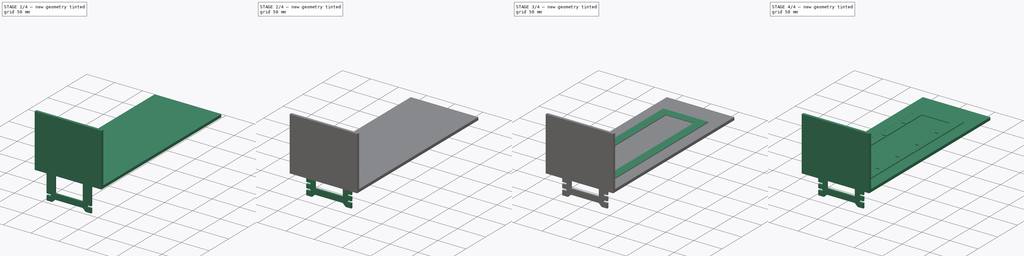
[diagram: build sequence overview — one tinted view per stage of 4, left to right]
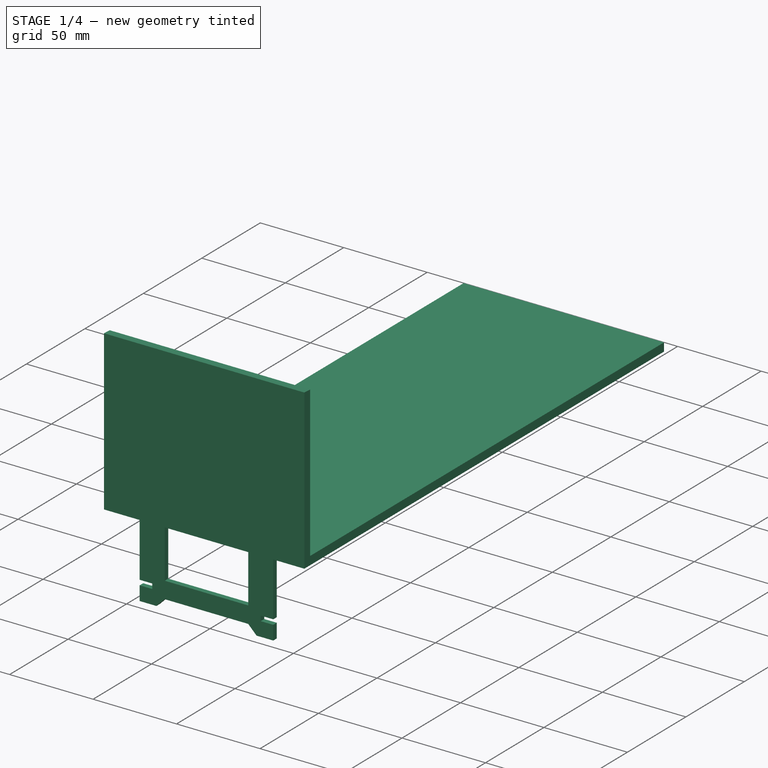
[diagram: stage 1 of 4 — iso view after this stage's code; geometry added in this stage tinted green]
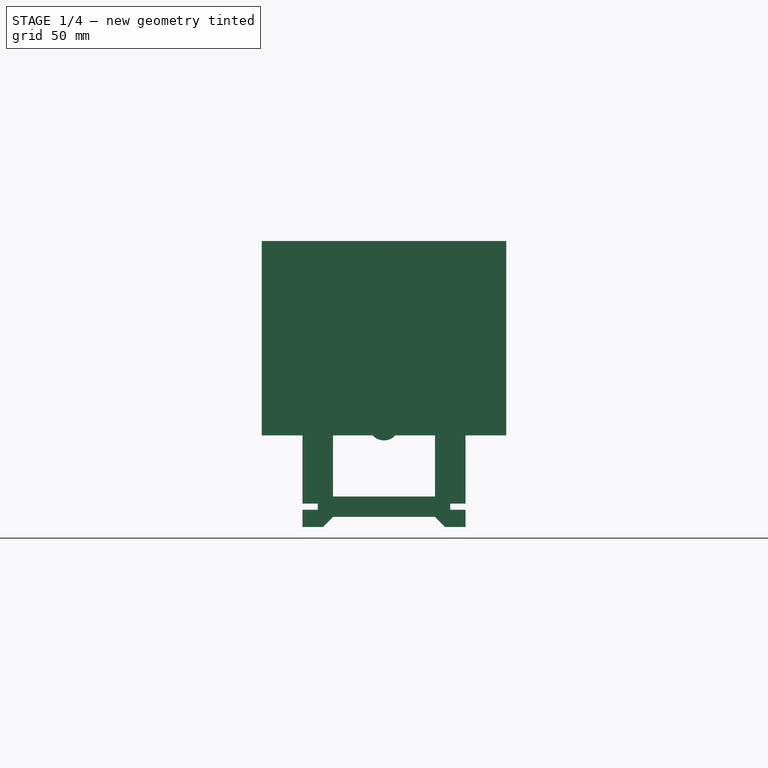
[diagram: stage 1 of 4 — front view after this stage's code; geometry added in this stage tinted green]
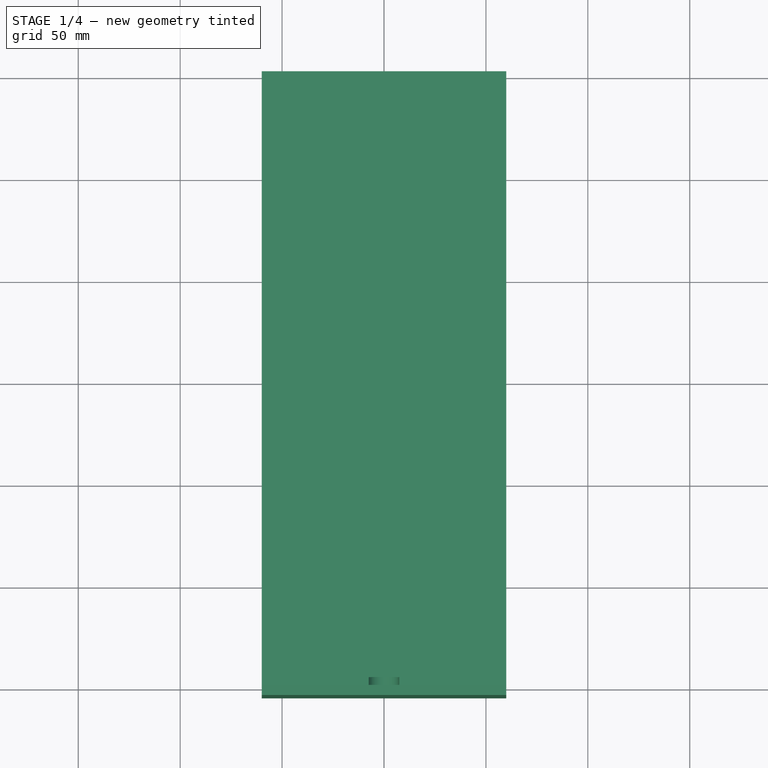
[diagram: stage 1 of 4 — top view after this stage's code; geometry added in this stage tinted green]
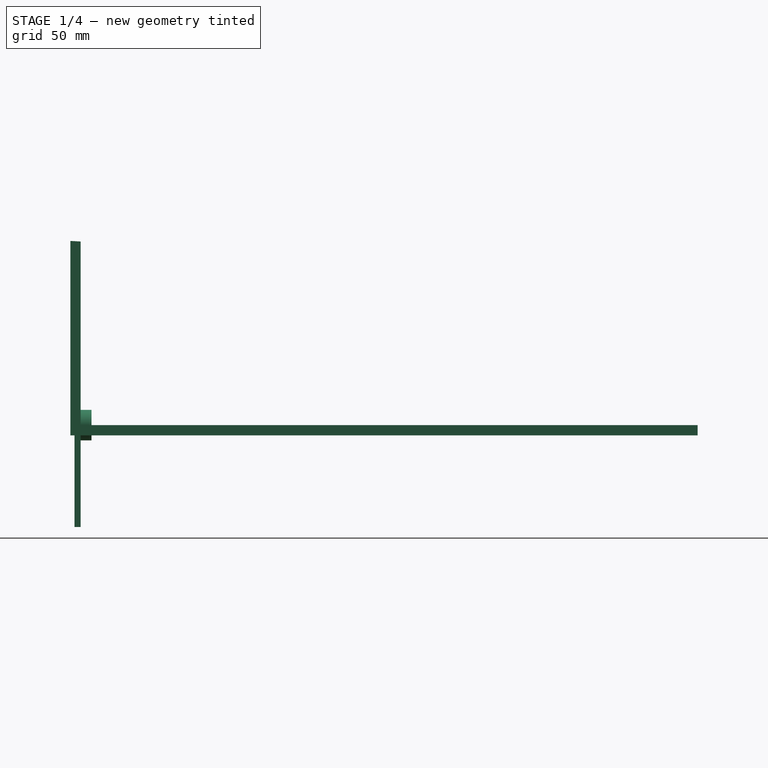
[diagram: stage 1 of 4 — right view after this stage's code; geometry added in this stage tinted green]
FCSTD DOCUMENT  (FreeCAD 0.19R24012 (Git))
Label: target_scale
License: All rights reserved
LicenseURL: http://en.wikipedia.org/wiki/All_rights_reserved
objects: Sketcher::SketchObject×9, PartDesign::Body×6, PartDesign::Pad×5, PartDesign::LinearPattern×4, PartDesign::Pocket×3, PartDesign::FeatureBase×1, App::Part×1, PartDesign::Revolution×1
note: 38 computed .brp shape members not serialized (recipe doc carries the construction recipe); baked Part::Feature solids carry a one-line shape summary decoded from their .brp

FEATURE [PartDesign::Body] Body001  label="bd_thread"
  Group = -> [Sketch003,Sketch004,Pad001,Pad002,LinearPattern002]
  Origin = -> Origin001
  Placement = pos=(0,5,2) rot=(0,0,1;0rad)
  Tip = -> LinearPattern002
FEATURE [Sketcher::SketchObject] Sketch005
  FullyConstrained = true
  MapMode = 5
  Placement = pos=(0,0,0) rot=(1,0,0;1.5708rad)
  Support = -> [XZ_Plane003]
  sketch-geometry (16):
    g0: LineSegment StartX=-25 StartY=35 StartZ=0 EndX=25 EndY=35 EndZ=0
    g1: LineSegment StartX=25 StartY=35 StartZ=0 EndX=25 EndY=-35 EndZ=0
    g2: LineSegment StartX=25 StartY=-35 StartZ=0 EndX=-25 EndY=-35 EndZ=0
    g3: LineSegment StartX=-25 StartY=-35 StartZ=0 EndX=-25 EndY=35 EndZ=0
    g4: LineSegment StartX=-40 StartY=50 StartZ=0 EndX=-30 EndY=50 EndZ=0
    g5: LineSegment StartX=40 StartY=50 StartZ=0 EndX=40 EndY=-50 EndZ=0
    g6: LineSegment StartX=40 StartY=-50 StartZ=0 EndX=30 EndY=-50 EndZ=0
    g7: LineSegment StartX=-40 StartY=-50 StartZ=0 EndX=-40 EndY=50 EndZ=0
    g8: LineSegment StartX=-30 StartY=50 StartZ=0 EndX=-25 EndY=45 EndZ=0
    g9: LineSegment StartX=-25 StartY=45 StartZ=0 EndX=25 EndY=45 EndZ=0
    g10: LineSegment StartX=25 StartY=45 StartZ=0 EndX=30 EndY=50 EndZ=0
    g11: LineSegment StartX=-30 StartY=-50 StartZ=0 EndX=-25 EndY=-45 EndZ=0
    g12: LineSegment StartX=-25 StartY=-45 StartZ=0 EndX=25 EndY=-45 EndZ=0
    g13: LineSegment StartX=25 StartY=-45 StartZ=0 EndX=30 EndY=-50 EndZ=0
    g14: LineSegment StartX=30 StartY=50 StartZ=0 EndX=40 EndY=50 EndZ=0
    g15: LineSegment StartX=-30 StartY=-50 StartZ=0 EndX=-40 EndY=-50 EndZ=0
  constraints (42):
    c: Coincident(g0,g1)
    c: Coincident(g1,g2)
    c: Coincident(g2,g3)
    c: Coincident(g3,g0)
    c: Horizontal(g0)
    c: Vertical(g1)
    c: Coincident(g14,g5)
    c: Coincident(g5,g6)
    c: Coincident(g15,g7)
    c: Coincident(g7,g4)
    c: Vertical(g7)
    c: DistanceX(g2,g2) = 50
    c: Symmetric(g2,g1,g-2)
    c: Horizontal(g6)
    c: DistanceY(g1,g1) = 70
    c: Symmetric(g2,g0,g-1)
    c: Symmetric(g4,g14,g-2)
    c: Symmetric(g14,g5,g-1)
    c: DistanceX(g1,g5) = 15
    c: DistanceY(g5,g1) = 15
    c: Coincident(g9,g8)
    c: Horizontal(g9)
    c: Coincident(g10,g9)
    c: Coincident(g12,g11)
    c: Horizontal(g12)
    c: Coincident(g13,g12)
    c: Equal(g8,g10)
    c: Equal(g10,g11)
    c: Equal(g11,g13)
    c: Coincident(g4,g8)
    c: Coincident(g14,g10)
    c: Tangent(g4,g14)
    c: Coincident(g6,g13)
    c: Coincident(g15,g11)
    c: Tangent(g6,g15)
    c: Equal(g15,g6)
    c: Equal(g6,g4)
    c: Equal(g4,g14)
    c: DistanceX(g4,g8) = 5
    c: DistanceY(g8,g4) = 5
    c: DistanceX(g15,g15) = 10
    c: DistanceX(g11,g11) = 5
FEATURE [PartDesign::Pad] Pad003
  Direction = (1,1,1)
  Length = 3
  Length2 = 100
  Placement = pos=(0,0,0) rot=(1,0,0;1.5708rad)
  Profile = -> Sketch005
  Type = 0
FEATURE [Sketcher::SketchObject] Sketch006
  AttachmentOffset = pos=(0,-40,0) rot=(0,0,1;0rad)
  FullyConstrained = true
  MapMode = 5
  Placement = pos=(0,-8.9e-15,-40) rot=(1,0,0;1.5708rad)
  Support = -> [XZ_Plane003]
  sketch-geometry (8):
    g0: LineSegment StartX=-42.5 StartY=1.5 StartZ=0 EndX=-32.5 EndY=1.5 EndZ=0
    g1: LineSegment StartX=-32.5 StartY=1.5 StartZ=0 EndX=-32.5 EndY=-1.5 EndZ=0
    g2: LineSegment StartX=-32.5 StartY=-1.5 StartZ=0 EndX=-42.5 EndY=-1.5 EndZ=0
    g3: LineSegment StartX=-42.5 StartY=-1.5 StartZ=0 EndX=-42.5 EndY=1.5 EndZ=0
    g4: LineSegment StartX=32.5 StartY=1.5 StartZ=0 EndX=42.5 EndY=1.5 EndZ=0
    g5: LineSegment StartX=42.5 StartY=1.5 StartZ=0 EndX=42.5 EndY=-1.5 EndZ=0
    g6: LineSegment StartX=42.5 StartY=-1.5 StartZ=0 EndX=32.5 EndY=-1.5 EndZ=0
    g7: LineSegment StartX=32.5 StartY=-1.5 StartZ=0 EndX=32.5 EndY=1.5 EndZ=0
  constraints (21):
    c: Coincident(g0,g1)
    c: Coincident(g1,g2)
    c: Coincident(g2,g3)
    c: Coincident(g3,g0)
    c: Horizontal(g0)
    c: Horizontal(g2)
    c: Vertical(g1)
    c: Coincident(g4,g5)
    c: Coincident(g5,g6)
    c: Coincident(g6,g7)
    c: Coincident(g7,g4)
    c: Horizontal(g4)
    c: Vertical(g5)
    c: Vertical(g7)
    c: Horizontal(g0,g4)
    c: DistanceY(g3,g3) = 3
    c: Symmetric(g0,g2,g-1)
    c: Symmetric(g1,g6,g-2)
    c: Symmetric(g2,g5,g-2)
    c: DistanceX(g2,g5) = 85
    c: DistanceX(g1,g6) = 65
FEATURE [PartDesign::Pocket] Pocket002
  BaseFeature = -> Pad003
  Length = 5
  Length2 = 100
  Placement = pos=(0,0,0) rot=(1,0,0;1.5708rad)
  Profile = -> Sketch006
  Reversed = true
  Type = 0
FEATURE [PartDesign::Body] Body003  label="bd_foot2"
  Group = -> [Clone]
  Origin = -> Origin004
  Placement = pos=(0,200,0) rot=(0,0,1;0rad)
  Tip = -> Clone
FEATURE [App::Part] Part  label="target_scale"
  Group = -> [Body,Body001,Body002,Body003]
  Origin = -> Origin002
  Placement = pos=(0,-1.39291,12.4171) rot=(1,0,0;0rad)
FEATURE [Sketcher::SketchObject] Sketch007
  FullyConstrained = false
  MapMode = 5
  Placement = pos=(0,0,0) rot=(0.57735,0.57735,0.57735;2.0944rad)
  Support = -> [YZ_Plane005]
  sketch-geometry (6):
    g0: LineSegment StartX=0 StartY=90.0909 StartZ=0 EndX=0 EndY=0 EndZ=0
    g1: LineSegment StartX=0 StartY=0 StartZ=0 EndX=302.692 EndY=0 EndZ=0
    g2: LineSegment StartX=302.692 StartY=0 StartZ=0 EndX=302.692 EndY=-5 EndZ=0
    g3: LineSegment StartX=302.692 StartY=-5 StartZ=0 EndX=-4.99288 EndY=-5 EndZ=0
    g4: LineSegment StartX=-4.99288 StartY=-5 StartZ=0 EndX=-4.99288 EndY=90.3576 EndZ=0
    g5: LineSegment StartX=-4.99288 StartY=90.3576 StartZ=0 EndX=0 EndY=90.0909 EndZ=0
  constraints (14):
    c: PointOnObject(g0,g-2)
    c: Coincident(g0,g-1)
    c: Coincident(g1,g0)
    c: Horizontal(g1)
    c: Coincident(g2,g1)
    c: Vertical(g2)
    c: Coincident(g3,g2)
    c: Horizontal(g3)
    c: Coincident(g4,g3)
    c: Vertical(g4)
    c: Coincident(g5,g4)
    c: Coincident(g5,g0)
    c: DistanceY(g2,g2) = 5
    c: Equal(g2,g5)
FEATURE [PartDesign::Pad] Pad004
  Direction = (1,1,1)
  Length = 120
  Length2 = 100
  Midplane = true
  Placement = pos=(0,0,0) rot=(0.57735,0.57735,0.57735;2.0944rad)
  Profile = -> Sketch007
  Type = 0
FEATURE [PartDesign::Body] Body004  label="bd_container"
  Group = -> [Sketch007,Pad004]
  Origin = -> Origin005
  Placement = pos=(0,-29.5,-27.5) rot=(0,0,1;0rad)
  Tip = -> Pad004
FEATURE [Sketcher::SketchObject] Sketch008
  FullyConstrained = false
  MapMode = 5
  Placement = pos=(0,0,0) rot=(0.57735,0.57735,0.57735;2.0944rad)
  Support = -> [YZ_Plane006]
  sketch-geometry (4):
    g0: LineSegment StartX=0 StartY=7.5 StartZ=0 EndX=0 EndY=2.7e-15 EndZ=0
    g1: LineSegment StartX=0 StartY=2.7e-15 StartZ=0 EndX=4 EndY=2.7e-15 EndZ=0
    g2: LineSegment StartX=0 StartY=7.5 StartZ=0 EndX=5.32603 EndY=7.5 EndZ=0
    g3: ArcOfCircle CenterX=25.8729 CenterY=0 CenterZ=0 NormalX=0 NormalY=0 NormalZ=1 AngleXU=0 Radius=21.8729 StartAngle=2.7916 EndAngle=3.14159
  constraints (11):
    c: PointOnObject(g0,g-2)
    c: Coincident(g1,g0)
    c: Horizontal(g1)
    c: Coincident(g2,g0)
    c: Horizontal(g2)
    c: PointOnObject(g3,g-1)
    c: Coincident(g3,g2)
    c: Coincident(g3,g1)
    c: DistanceY(g0,g0) = 7.5
    c: DistanceX(g1,g1) = 4
    c: Coincident(g0,g-1)
FEATURE [PartDesign::Revolution] Revolution
  Angle = 360
  Axis = (3e-16,1,-2e-16)
  Base = (0,0,0)
  Placement = pos=(0,0,0) rot=(0.57735,0.57735,0.57735;2.0944rad)
  Profile = -> Sketch008
  ReferenceAxis = -> Sketch008 [H_Axis]
FEATURE [PartDesign::Body] Body005  label="bd_transducer"
  Group = -> [Sketch008,Revolution]
  Origin = -> Origin006
  Placement = pos=(0,-29.5,14.5) rot=(0,0,1;0rad)
  Tip = -> Revolution
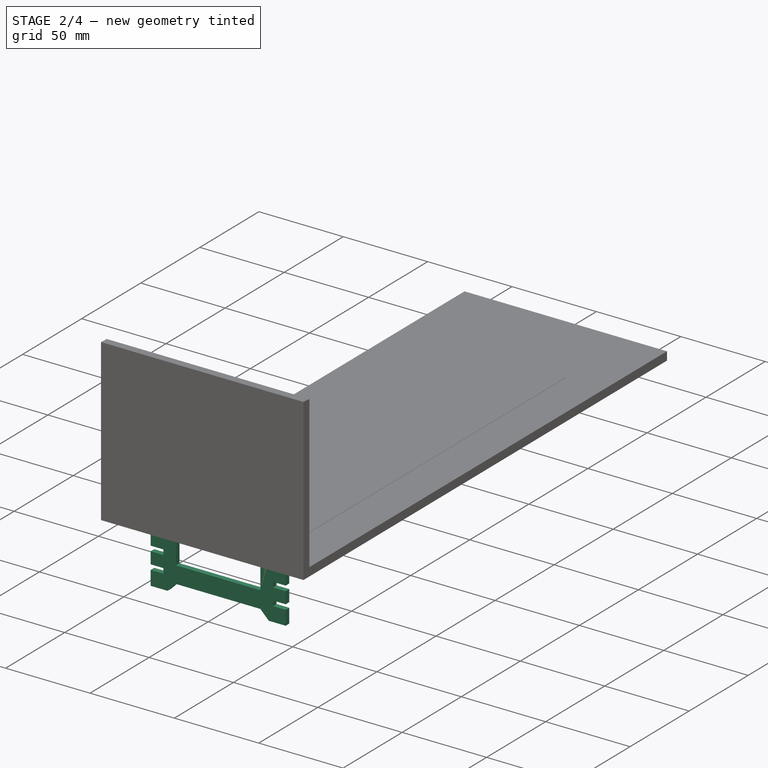
[diagram: stage 2 of 4 — iso view after this stage's code; geometry added in this stage tinted green]
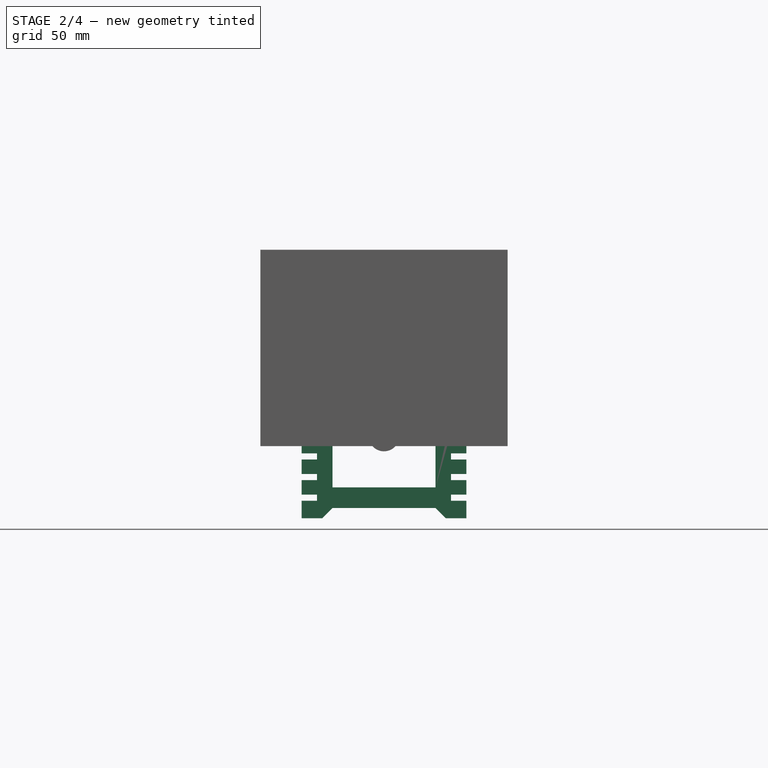
[diagram: stage 2 of 4 — front view after this stage's code; geometry added in this stage tinted green]
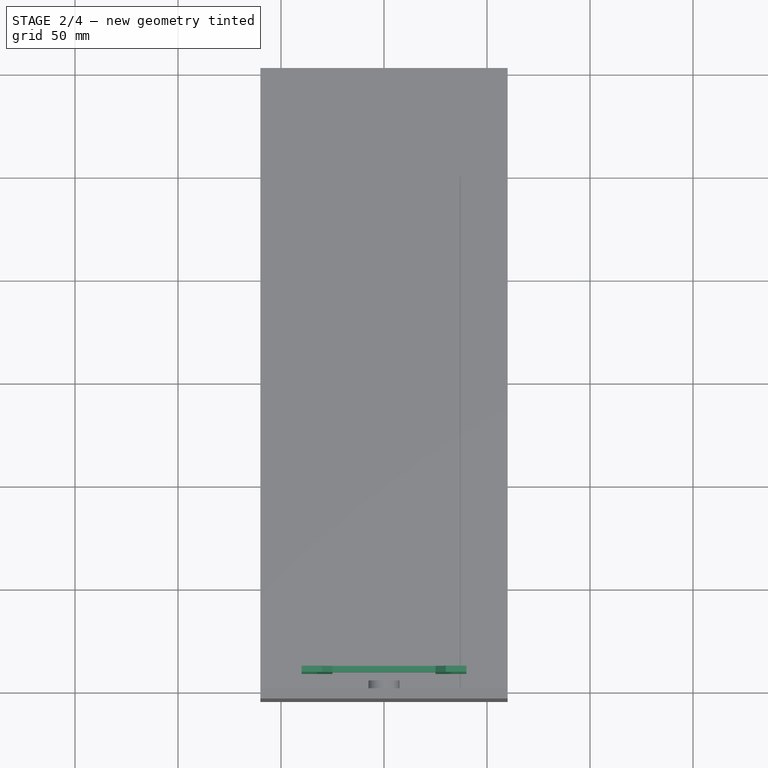
[diagram: stage 2 of 4 — top view after this stage's code; geometry added in this stage tinted green]
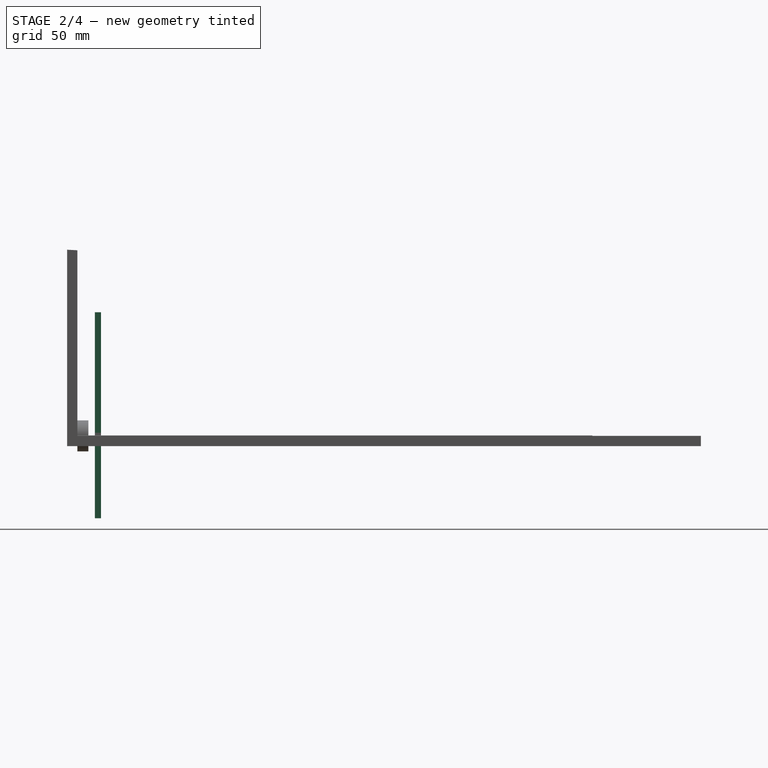
[diagram: stage 2 of 4 — right view after this stage's code; geometry added in this stage tinted green]
FEATURE [PartDesign::Body] Body  label="bd_scale"
  Group = -> [Sketch,Pad,Sketch001,Pocket,LinearPattern,Sketch002,Pocket001,LinearPattern001]
  Origin = -> Origin
  Tip = -> LinearPattern001
FEATURE [Sketcher::SketchObject] Sketch003
  AttachmentOffset = pos=(0,0,37) rot=(0,0,1;0rad)
  FullyConstrained = true
  MapMode = 5
  Placement = pos=(37,-8.2e-15,8.2e-15) rot=(0.57735,0.57735,0.57735;2.0944rad)
  Support = -> [YZ_Plane001]
  sketch-geometry (1):
    g0: Circle CenterX=0 CenterY=0 CenterZ=0 NormalX=0 NormalY=0 NormalZ=1 AngleXU=0 Radius=0.25
  constraints (2):
    c: Coincident(g0,g-1)
    c: Diameter(g0) = 0.5
FEATURE [Sketcher::SketchObject] Sketch004
  AttachmentOffset = pos=(37,0,0) rot=(0,0,1;0rad)
  FullyConstrained = true
  MapMode = 5
  Placement = pos=(37,0,0) rot=(1,0,0;1.5708rad)
  Support = -> [XZ_Plane001]
  sketch-geometry (1):
    g0: Circle CenterX=0 CenterY=0 CenterZ=0 NormalX=0 NormalY=0 NormalZ=1 AngleXU=0 Radius=0.25
  constraints (2):
    c: Coincident(g0,g-1)
    c: Diameter(g0) = 0.5
FEATURE [PartDesign::Pad] Pad001
  Direction = (1,1,1)
  Length = 250
  Length2 = 100
  Placement = pos=(0,0,0) rot=(1,0,0;1.5708rad)
  Profile = -> Sketch004
  Reversed = true
  Type = 0
FEATURE [PartDesign::LinearPattern] LinearPattern003
  BaseFeature = -> Pocket002
  Direction = -> Sketch006 [V_Axis]
  Length = 80
  Occurrences = 9
  Originals = -> [Pocket002]
  Placement = pos=(0,0,0) rot=(1,0,0;1.5708rad)
FEATURE [PartDesign::Body] Body002  label="bd_foot"
  Group = -> [Sketch005,Pad003,Sketch006,Pocket002,LinearPattern003]
  Origin = -> Origin003
  Placement = pos=(0,11.5,10) rot=(0,0,1;0rad)
  Tip = -> LinearPattern003
FEATURE [PartDesign::FeatureBase] Clone
  BaseFeature = -> Body002
  Placement = pos=(0,11.5,10) rot=(0,0,1;0rad)
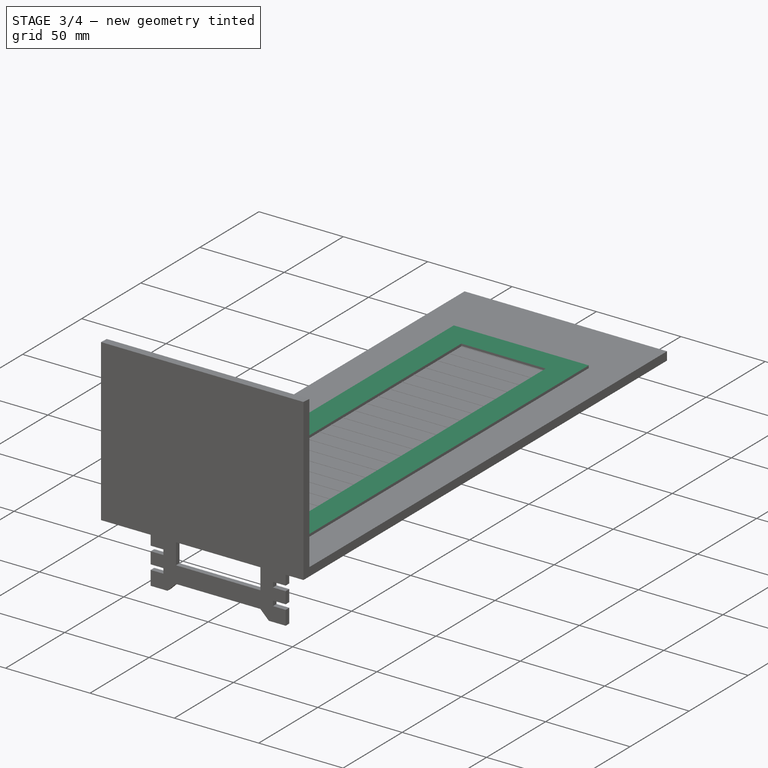
[diagram: stage 3 of 4 — iso view after this stage's code; geometry added in this stage tinted green]
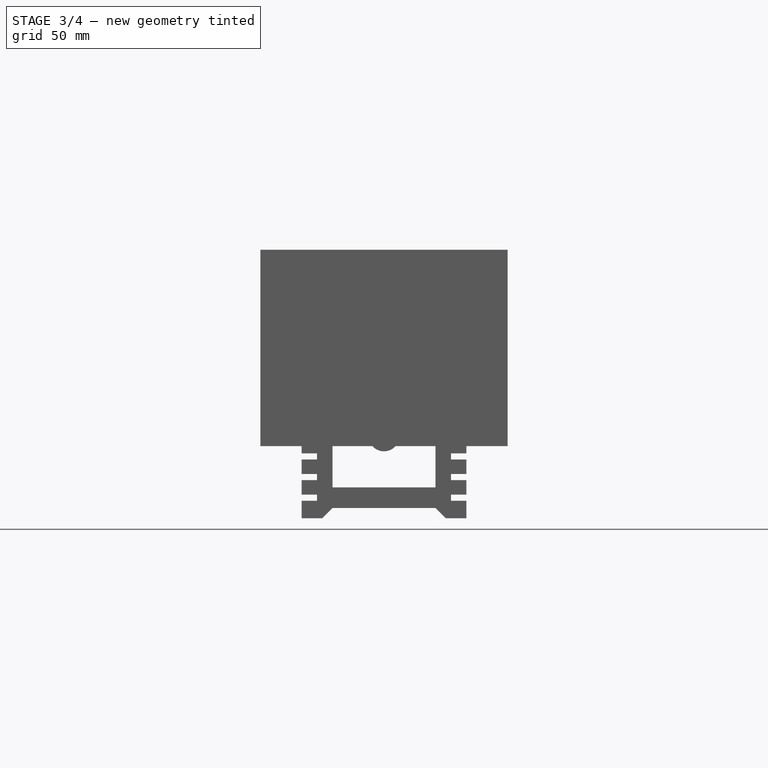
[diagram: stage 3 of 4 — front view after this stage's code; geometry added in this stage tinted green]
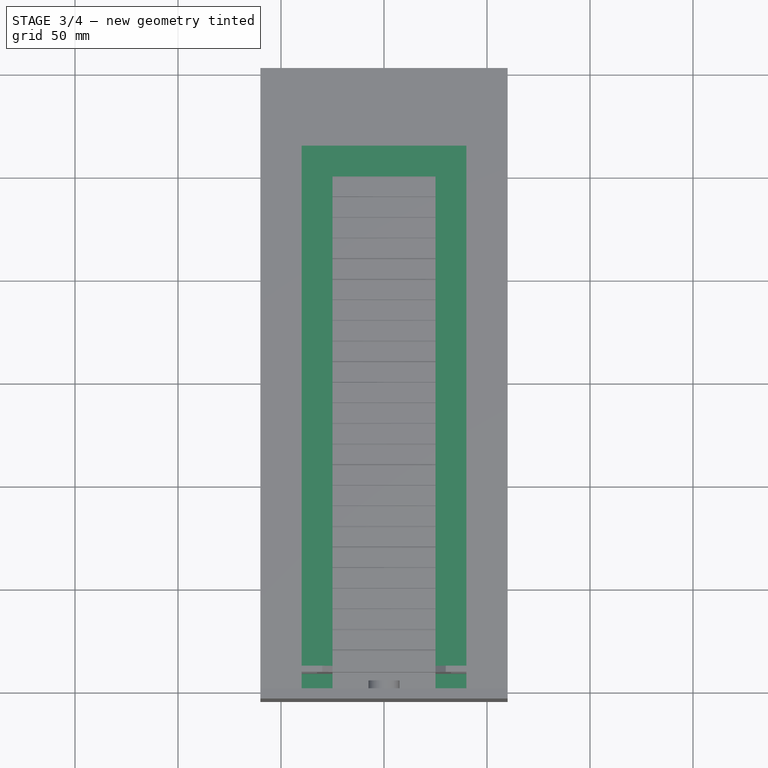
[diagram: stage 3 of 4 — top view after this stage's code; geometry added in this stage tinted green]
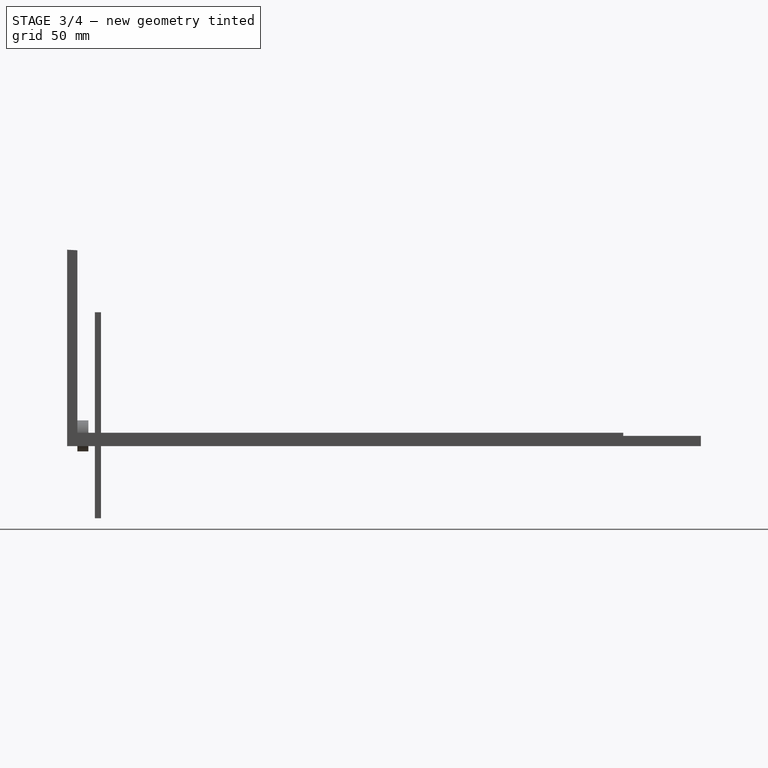
[diagram: stage 3 of 4 — right view after this stage's code; geometry added in this stage tinted green]
FEATURE [Sketcher::SketchObject] Sketch
  FullyConstrained = true
  MapMode = 5
  Support = -> [XY_Plane]
  sketch-geometry (9):
    g0: LineSegment StartX=-25 StartY=0 StartZ=0 EndX=-25 EndY=250 EndZ=0
    g1: LineSegment StartX=-25 StartY=250 StartZ=0 EndX=25 EndY=250 EndZ=0
    g2: LineSegment StartX=25 StartY=0 StartZ=0 EndX=40 EndY=0 EndZ=0
    g3: LineSegment StartX=40 StartY=0 StartZ=0 EndX=40 EndY=265 EndZ=0
    g4: LineSegment StartX=40 StartY=265 StartZ=0 EndX=-40 EndY=265 EndZ=0
    g5: LineSegment StartX=-40 StartY=265 StartZ=0 EndX=-40 EndY=0 EndZ=0
    g6: LineSegment StartX=-40 StartY=0 StartZ=0 EndX=-25 EndY=0 EndZ=0
    g7: LineSegment StartX=-25 StartY=250 StartZ=0 EndX=-25 EndY=265 EndZ=0
    g8: LineSegment StartX=25 StartY=250 StartZ=0 EndX=25 EndY=0 EndZ=0
  constraints (26):
    c: PointOnObject(g0,g-1)
    c: Vertical(g0)
    c: Horizontal(g1)
    c: Coincident(g2,g8)
    c: PointOnObject(g2,g-1)
    c: Coincident(g3,g2)
    c: Vertical(g3)
    c: Coincident(g4,g3)
    c: Horizontal(g4)
    c: Coincident(g5,g4)
    c: PointOnObject(g5,g-1)
    c: Vertical(g5)
    c: Coincident(g6,g5)
    c: Coincident(g6,g0)
    c: Symmetric(g0,g8,g-2)
    c: DistanceX(g0,g8) = 50
    c: Equal(g6,g2)
    c: DistanceX(g6,g6) = 15
    c: PointOnObject(g7,g4)
    c: Vertical(g7)
    c: Equal(g7,g6)
    c: DistanceY(g8,g1) = 250
    c: Coincident(g0,g1)
    c: Coincident(g8,g1)
    c: Vertical(g8)
    c: Coincident(g7,g0)
FEATURE [PartDesign::Pad] Pad
  Direction = (1,1,1)
  Length = 3
  Length2 = 100
  Midplane = true
  Profile = -> Sketch
  Type = 0
FEATURE [PartDesign::Pad] Pad002
  BaseFeature = -> Pad001
  Direction = (1,1,1)
  Length = 74
  Length2 = 100
  Placement = pos=(0,0,0) rot=(1,0,0;1.5708rad)
  Profile = -> Sketch003
  Reversed = true
  Type = 0
FEATURE [PartDesign::LinearPattern] LinearPattern002
  BaseFeature = -> Pad002
  Direction = -> Sketch003 [H_Axis]
  Length = 250
  Occurrences = 26
  Originals = -> [Pad002]
  Placement = pos=(0,0,0) rot=(1,0,0;1.5708rad)
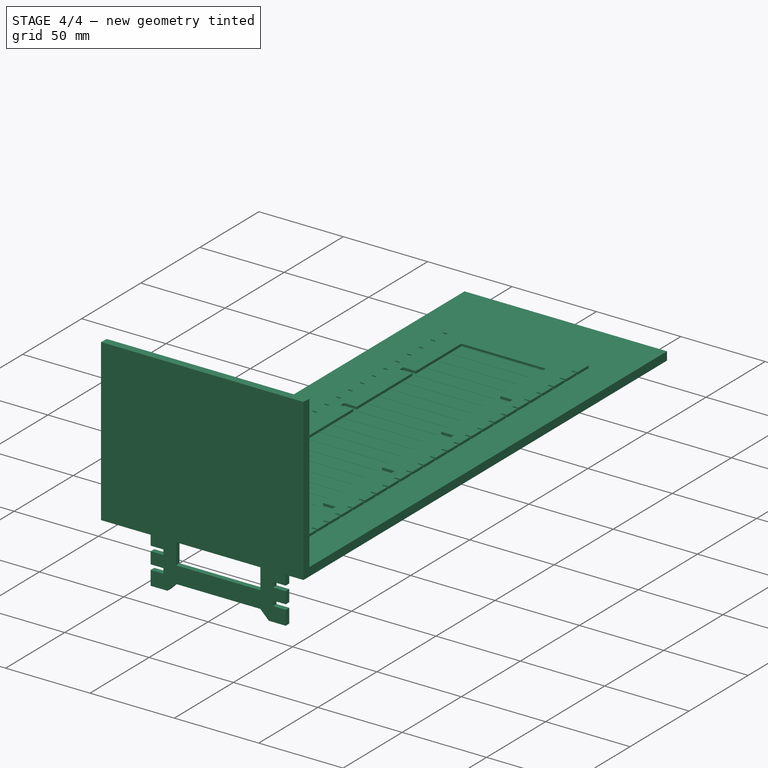
[diagram: stage 4 of 4 — iso view after this stage's code; geometry added in this stage tinted green]
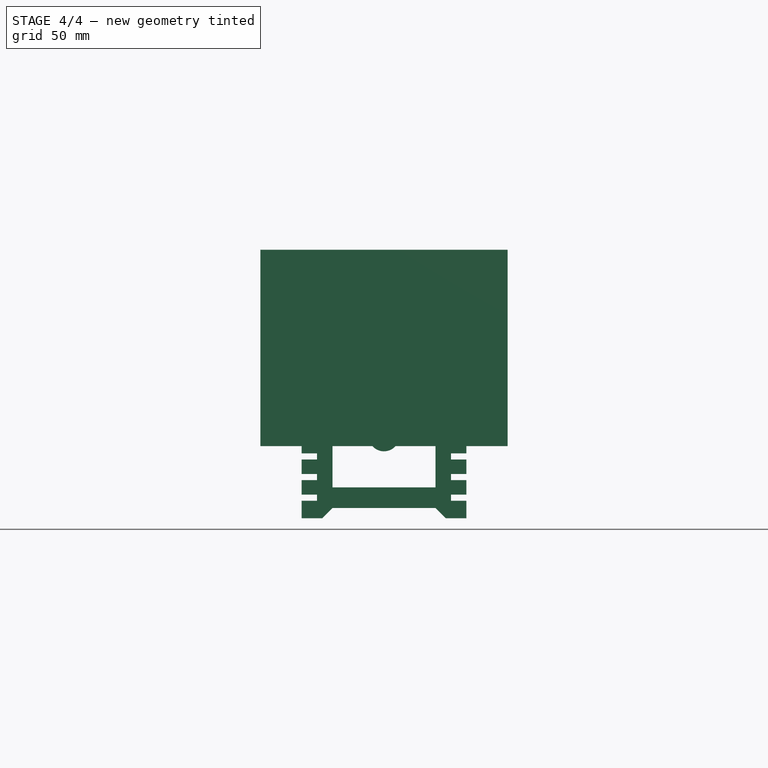
[diagram: stage 4 of 4 — front view after this stage's code; geometry added in this stage tinted green]
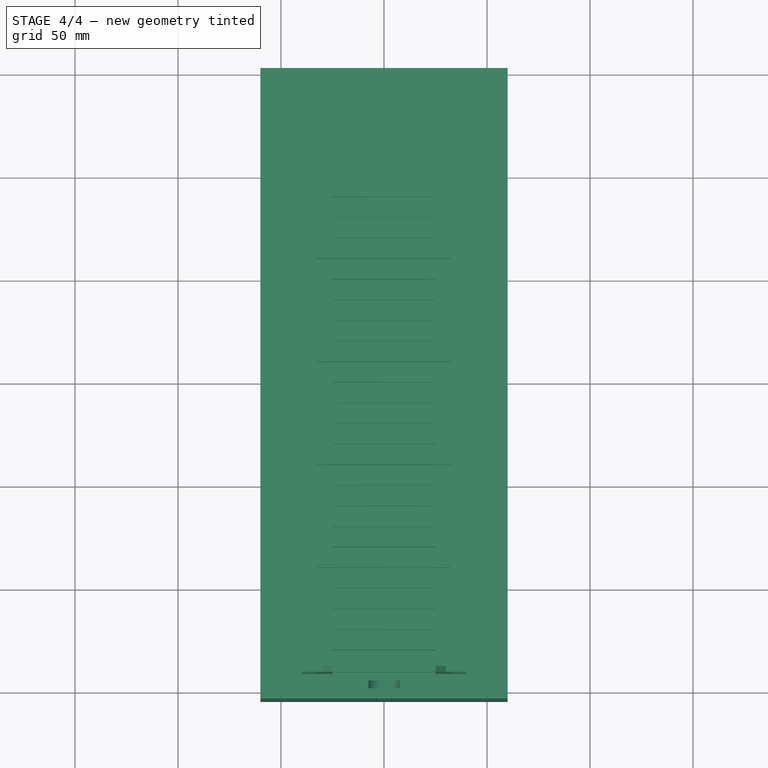
[diagram: stage 4 of 4 — top view after this stage's code; geometry added in this stage tinted green]
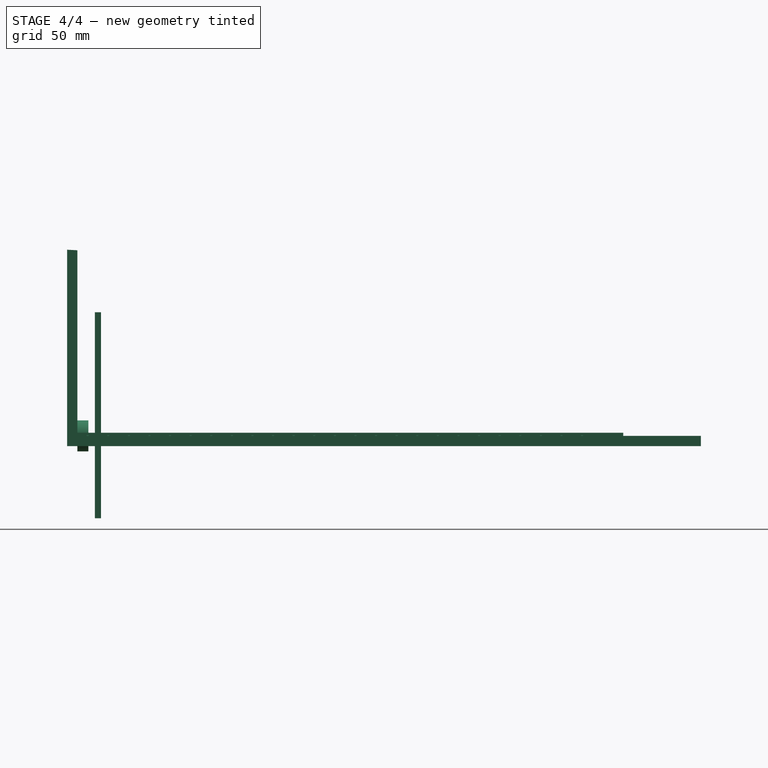
[diagram: stage 4 of 4 — right view after this stage's code; geometry added in this stage tinted green]
FEATURE [Sketcher::SketchObject] Sketch001
  AttachmentOffset = pos=(0,10,0) rot=(0,0,1;0rad)
  FullyConstrained = true
  MapMode = 5
  Placement = pos=(0,10,0) rot=(0,0,1;0rad)
  Support = -> [XY_Plane]
  expr: Constraints[8] = 50 + 7.5 + 7.5
  sketch-geometry (4):
    g0: LineSegment StartX=-32.5 StartY=-1.5 StartZ=0 EndX=32.5 EndY=-1.5 EndZ=0
    g1: LineSegment StartX=32.5 StartY=-1.5 StartZ=0 EndX=32.5 EndY=1.5 EndZ=0
    g2: LineSegment StartX=32.5 StartY=1.5 StartZ=0 EndX=-32.5 EndY=1.5 EndZ=0
    g3: LineSegment StartX=-32.5 StartY=1.5 StartZ=0 EndX=-32.5 EndY=-1.5 EndZ=0
  constraints (10):
    c: Coincident(g0,g1)
    c: Coincident(g1,g2)
    c: Coincident(g2,g3)
    c: Coincident(g3,g0)
    c: Horizontal(g2)
    c: Vertical(g3)
    c: Symmetric(g0,g0,g-2)
    c: DistanceY(g3,g3) = 3
    c: DistanceX(g0,g0) = 65
    c: Symmetric(g1,g0,g-1)
FEATURE [PartDesign::Pocket] Pocket
  BaseFeature = -> Pad
  Length = 5
  Length2 = 100
  Midplane = true
  Profile = -> Sketch001
  Type = 0
FEATURE [PartDesign::LinearPattern] LinearPattern
  BaseFeature = -> Pocket
  Direction = -> Y_Axis
  Length = 200
  Occurrences = 5
  Originals = -> [Pocket]
FEATURE [Sketcher::SketchObject] Sketch002
  AttachmentOffset = pos=(0,5,0) rot=(0,0,1;0rad)
  FullyConstrained = true
  MapMode = 5
  Placement = pos=(0,5,0) rot=(0,0,1;0rad)
  Support = -> [XY_Plane]
  expr: Constraints[18] = 80 - 6
  sketch-geometry (8):
    g0: LineSegment StartX=-45 StartY=0.5 StartZ=0 EndX=-37 EndY=0.5 EndZ=0
    g1: LineSegment StartX=-37 StartY=0.5 StartZ=0 EndX=-37 EndY=-0.5 EndZ=0
    g2: LineSegment StartX=-37 StartY=-0.5 StartZ=0 EndX=-45 EndY=-0.5 EndZ=0
    g3: LineSegment StartX=-45 StartY=-0.5 StartZ=0 EndX=-45 EndY=0.5 EndZ=0
    g4: LineSegment StartX=37 StartY=0.5 StartZ=0 EndX=45 EndY=0.5 EndZ=0
    g5: LineSegment StartX=45 StartY=0.5 StartZ=0 EndX=45 EndY=-0.5 EndZ=0
    g6: LineSegment StartX=45 StartY=-0.5 StartZ=0 EndX=37 EndY=-0.5 EndZ=0
    g7: LineSegment StartX=37 StartY=-0.5 StartZ=0 EndX=37 EndY=0.5 EndZ=0
  constraints (22):
    c: Coincident(g0,g1)
    c: Coincident(g1,g2)
    c: Coincident(g2,g3)
    c: Coincident(g3,g0)
    c: Horizontal(g0)
    c: Horizontal(g2)
    c: Vertical(g1)
    c: Coincident(g4,g5)
    c: Coincident(g5,g6)
    c: Coincident(g6,g7)
    c: Coincident(g7,g4)
    c: Horizontal(g4)
    c: Horizontal(g6)
    c: Vertical(g5)
    c: Vertical(g7)
    c: Equal(g3,g5)
    c: Symmetric(g1,g6,g-2)
    c: Equal(g2,g6)
    c: DistanceX(g1,g6) = 74
    c: DistanceY(g3,g3) = 1
    c: Symmetric(g0,g2,g-1)
    c: DistanceX(g2,g5) = 90
FEATURE [PartDesign::Pocket] Pocket001
  BaseFeature = -> LinearPattern
  Length = 5
  Length2 = 100
  Midplane = true
  Profile = -> Sketch002
  Type = 0
FEATURE [PartDesign::LinearPattern] LinearPattern001
  BaseFeature = -> Pocket001
  Direction = -> Y_Axis
  Length = 250
  Occurrences = 26
  Originals = -> [Pocket001]
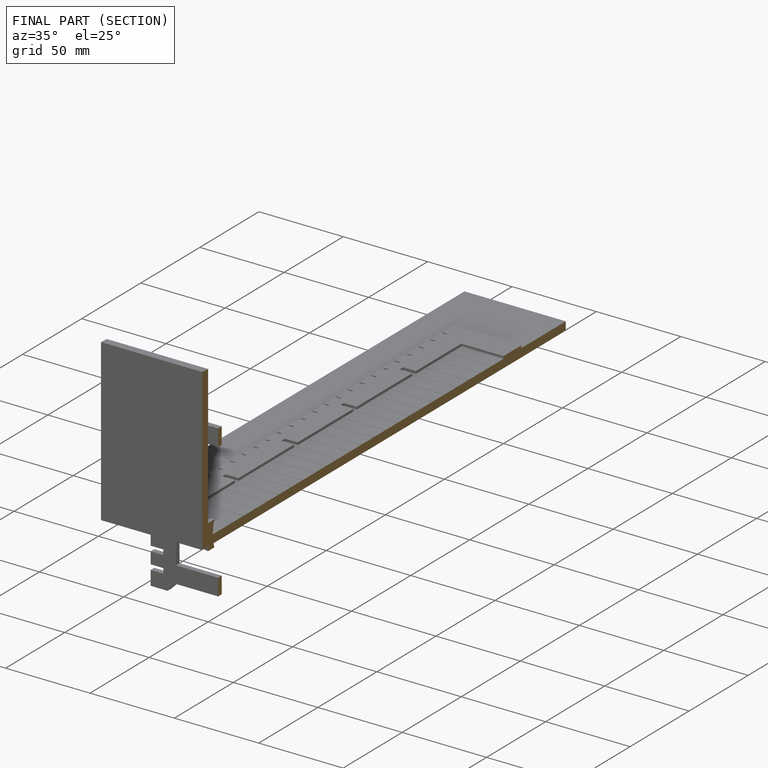
[diagram: finished part — half-section view (interior)]
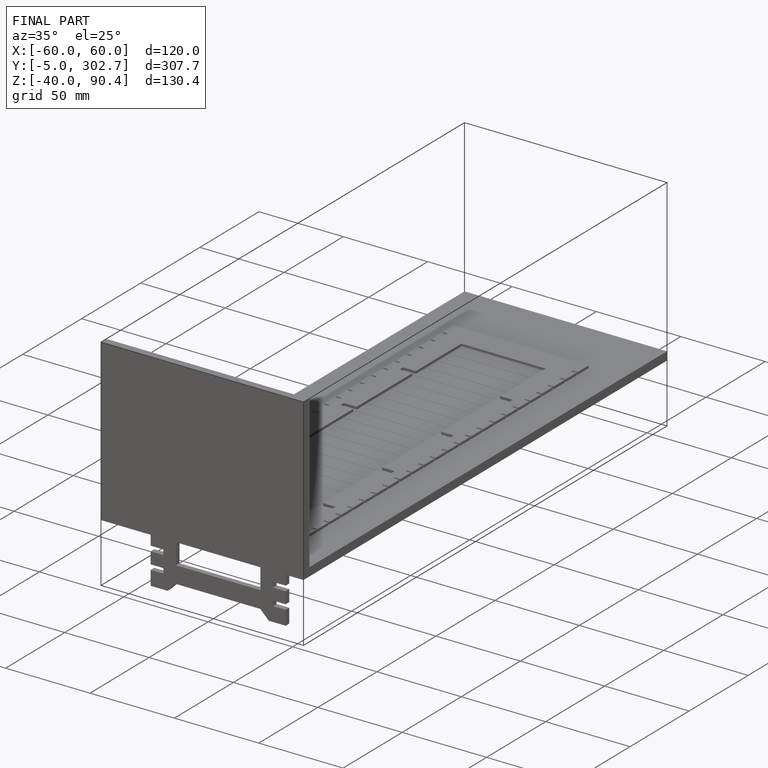
[diagram: finished part — iso view with bounding-box wireframe]
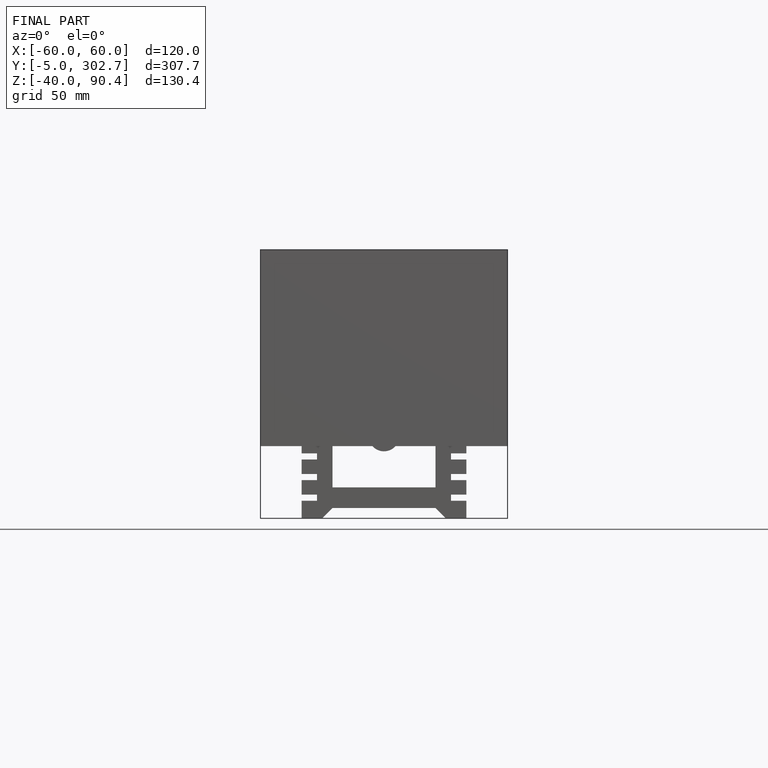
[diagram: finished part — front view with bounding-box wireframe]
